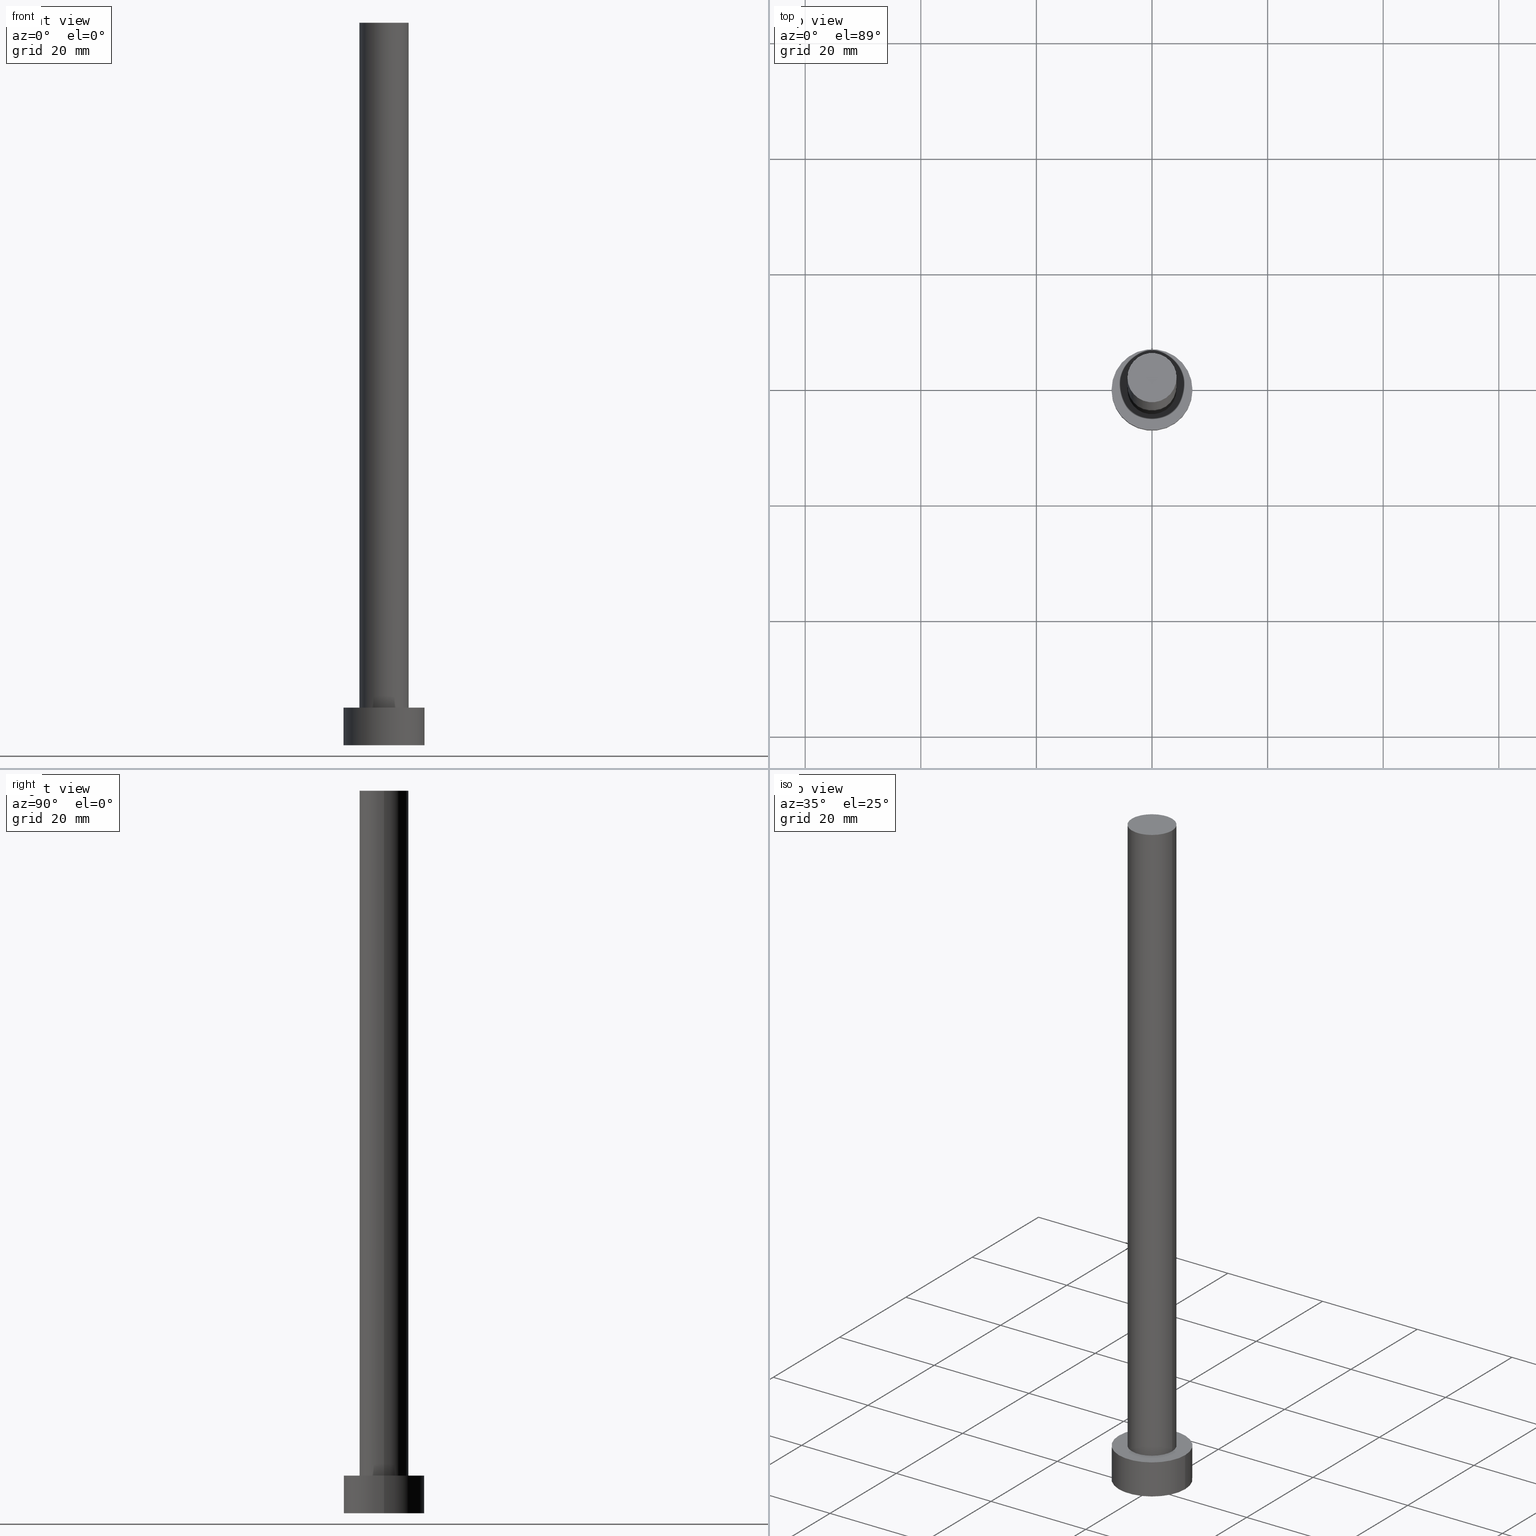
[diagram: canonical four-view strip — front | top / right | iso, engineering-drawing reading convention]
A machine part, canonical four-view strip (front | top / right | iso — engineering-drawing reading convention). The complete STEP part file that produces these views, byte-faithful:
ISO-10303-21;
HEADER;
FILE_DESCRIPTION (( 'STEP AP203' ),
    '1' );
FILE_NAME ('383f.STEP',
    '2023-02-13T13:48:49',
    ( '' ),
    ( '' ),
    'SwSTEP 2.0',
    'SolidWorks 2019',
    '' );
FILE_SCHEMA (( 'CONFIG_CONTROL_DESIGN' ));
ENDSEC;

DATA;
#1 = DATE_AND_TIME ( #179, #61 ) ;
#2 =( NAMED_UNIT ( * ) SI_UNIT ( $, .STERADIAN. ) SOLID_ANGLE_UNIT ( ) );
#3 = CIRCLE ( 'NONE', #147, 7.000000000000000000 ) ;
#4 = PRODUCT ( '383f', '383f', '', ( #25 ) ) ;
#5 = ADVANCED_FACE ( 'NONE', ( #161 ), #238, .T. ) ;
#6 = DIRECTION ( 'NONE',  ( -0.000000000000000000, -0.000000000000000000, -1.000000000000000000 ) ) ;
#7 = PERSON_AND_ORGANIZATION_ROLE ( 'creator' ) ;
#8 = AXIS2_PLACEMENT_3D ( 'NONE', #193, #16, #71 ) ;
#9 = PERSON_AND_ORGANIZATION_ROLE ( 'design_supplier' ) ;
#10 = DIRECTION ( 'NONE',  ( 0.000000000000000000, 0.000000000000000000, 1.000000000000000000 ) ) ;
#11 = PERSON_AND_ORGANIZATION ( #241, #66 ) ;
#12 = LOCAL_TIME ( 14, 48, 49.00000000000000000, #206 ) ;
#13 = CC_DESIGN_APPROVAL ( #190, ( #156 ) ) ;
#14 = DIRECTION ( 'NONE',  ( 0.000000000000000000, 0.000000000000000000, 1.000000000000000000 ) ) ;
#15 = APPROVAL ( #48, 'NEUR�EN�' ) ;
#16 = DIRECTION ( 'NONE',  ( -0.000000000000000000, -0.000000000000000000, -1.000000000000000000 ) ) ;
#17 = VERTEX_POINT ( 'NONE', #240 ) ;
#18 = DATE_AND_TIME ( #139, #114 ) ;
#19 = DIRECTION ( 'NONE',  ( 1.000000000000000000, 0.000000000000000000, -0.000000000000000000 ) ) ;
#20 = CYLINDRICAL_SURFACE ( 'NONE', #195, 4.250000000000000000 ) ;
#21 = ORIENTED_EDGE ( 'NONE', *, *, #168, .F. ) ;
#22 = LOCAL_TIME ( 14, 48, 49.00000000000000000, #142 ) ;
#23 = PRODUCT_RELATED_PRODUCT_CATEGORY ( 'detail', '', ( #4 ) ) ;
#24 = EDGE_LOOP ( 'NONE', ( #219, #39, #58, #126 ) ) ;
#25 = MECHANICAL_CONTEXT ( 'NONE', #50, 'mechanical' ) ;
#26 = PLANE ( 'NONE',  #45 ) ;
#27 = CC_DESIGN_PERSON_AND_ORGANIZATION_ASSIGNMENT ( #200, #129, ( #4 ) ) ;
#28 = DIRECTION ( 'NONE',  ( -0.000000000000000000, -0.000000000000000000, -1.000000000000000000 ) ) ;
#29 = CALENDAR_DATE ( 2023, 13, 2 ) ;
#30 = DIRECTION ( 'NONE',  ( 1.000000000000000000, 0.000000000000000000, -0.000000000000000000 ) ) ;
#31 = CIRCLE ( 'NONE', #207, 7.000000000000000000 ) ;
#32 = EDGE_CURVE ( 'NONE', #105, #217, #47, .T. ) ;
#33 = DIRECTION ( 'NONE',  ( 0.000000000000000000, 0.000000000000000000, 1.000000000000000000 ) ) ;
#34 = CLOSED_SHELL ( 'NONE', ( #53, #5, #137, #79, #74, #211, #162 ) ) ;
#35 = MANIFOLD_SOLID_BREP ( 'P�idat vysunut�m3', #34 ) ;
#36 = CARTESIAN_POINT ( 'NONE',  ( -4.250000000000000000, 0.000000000000000000, 125.0000000000000000 ) ) ;
#37 = DIRECTION ( 'NONE',  ( 1.000000000000000000, 0.000000000000000000, 0.000000000000000000 ) ) ;
#38 = UNCERTAINTY_MEASURE_WITH_UNIT (LENGTH_MEASURE( 1.000000000000000082E-05 ), #213, 'distance_accuracy_value', 'NONE');
#39 = ORIENTED_EDGE ( 'NONE', *, *, #106, .F. ) ;
#40 = LINE ( 'NONE', #196, #201 ) ;
#41 = CC_DESIGN_DATE_AND_TIME_ASSIGNMENT ( #1, #85, ( #93 ) ) ;
#42 = ORIENTED_EDGE ( 'NONE', *, *, #32, .T. ) ;
#43 = EDGE_CURVE ( 'NONE', #105, #128, #225, .T. ) ;
#44 = VERTEX_POINT ( 'NONE', #234 ) ;
#45 = AXIS2_PLACEMENT_3D ( 'NONE', #96, #246, #244 ) ;
#46 = ADVANCED_BREP_SHAPE_REPRESENTATION ( '383f', ( #35, #216 ), #248 ) ;
#47 = LINE ( 'NONE', #187, #250 ) ;
#48 = APPROVAL_STATUS ( 'not_yet_approved' ) ;
#49 = CC_DESIGN_SECURITY_CLASSIFICATION ( #157, ( #156 ) ) ;
#50 = APPLICATION_CONTEXT ( 'configuration controlled 3d designs of mechanical parts and assemblies' ) ;
#51 = APPROVAL_DATE_TIME ( #223, #190 ) ;
#52 = CARTESIAN_POINT ( 'NONE',  ( -4.250000000000000000, 0.000000000000000000, 125.0000000000000000 ) ) ;
#53 = ADVANCED_FACE ( 'NONE', ( #199 ), #20, .T. ) ;
#54 = COORDINATED_UNIVERSAL_TIME_OFFSET ( 1, 0, .AHEAD. ) ;
#55 = CARTESIAN_POINT ( 'NONE',  ( -7.000000000000000000, 0.000000000000000000, 6.500000000000000000 ) ) ;
#56 = AXIS2_PLACEMENT_3D ( 'NONE', #251, #80, #59 ) ;
#57 = DIRECTION ( 'NONE',  ( -1.000000000000000000, 0.000000000000000000, 0.000000000000000000 ) ) ;
#58 = ORIENTED_EDGE ( 'NONE', *, *, #99, .T. ) ;
#59 = DIRECTION ( 'NONE',  ( 1.000000000000000000, 0.000000000000000000, 0.000000000000000000 ) ) ;
#60 = EDGE_CURVE ( 'NONE', #128, #81, #141, .T. ) ;
#61 = LOCAL_TIME ( 14, 48, 49.00000000000000000, #103 ) ;
#62 = VECTOR ( 'NONE', #28, 1000.000000000000000 ) ;
#63 = ORIENTED_EDGE ( 'NONE', *, *, #245, .F. ) ;
#64 = APPROVAL ( #159, 'NEUR�EN�' ) ;
#65 = CARTESIAN_POINT ( 'NONE',  ( 0.000000000000000000, 0.000000000000000000, 125.0000000000000000 ) ) ;
#66 = ORGANIZATION ( 'NEUR�EN�', 'NEUR�EN�', '' ) ;
#67 = APPROVAL_STATUS ( 'not_yet_approved' ) ;
#68 = CARTESIAN_POINT ( 'NONE',  ( 0.000000000000000000, 0.000000000000000000, 0.000000000000000000 ) ) ;
#69 = APPLICATION_CONTEXT ( 'configuration controlled 3d designs of mechanical parts and assemblies' ) ;
#70 = CIRCLE ( 'NONE', #197, 4.250000000000000000 ) ;
#71 = DIRECTION ( 'NONE',  ( -1.000000000000000000, 0.000000000000000000, 0.000000000000000000 ) ) ;
#72 = FACE_BOUND ( 'NONE', #122, .T. ) ;
#73 = PERSON_AND_ORGANIZATION_ROLE ( 'classification_officer' ) ;
#74 = ADVANCED_FACE ( 'NONE', ( #112 ), #26, .F. ) ;
#75 = CARTESIAN_POINT ( 'NONE',  ( -7.000000000000000000, 0.000000000000000000, 0.000000000000000000 ) ) ;
#76 = CYLINDRICAL_SURFACE ( 'NONE', #100, 4.250000000000000000 ) ;
#77 = EDGE_LOOP ( 'NONE', ( #111, #42, #253, #146 ) ) ;
#78 = COORDINATED_UNIVERSAL_TIME_OFFSET ( 1, 0, .AHEAD. ) ;
#79 = ADVANCED_FACE ( 'NONE', ( #72, #150 ), #131, .T. ) ;
#80 = DIRECTION ( 'NONE',  ( 0.000000000000000000, 0.000000000000000000, 1.000000000000000000 ) ) ;
#81 = VERTEX_POINT ( 'NONE', #94 ) ;
#82 = CARTESIAN_POINT ( 'NONE',  ( 7.000000000000000000, 8.572527594031471218E-16, 6.500000000000000000 ) ) ;
#83 = EDGE_LOOP ( 'NONE', ( #84, #101, #138, #214 ) ) ;
#84 = ORIENTED_EDGE ( 'NONE', *, *, #32, .F. ) ;
#85 = DATE_TIME_ROLE ( 'creation_date' ) ;
#86 = ORIENTED_EDGE ( 'NONE', *, *, #43, .T. ) ;
#87 = VERTEX_POINT ( 'NONE', #75 ) ;
#88 =( NAMED_UNIT ( * ) PLANE_ANGLE_UNIT ( ) SI_UNIT ( $, .RADIAN. ) );
#89 = APPROVAL_PERSON_ORGANIZATION ( #242, #15, #183 ) ;
#90 = AXIS2_PLACEMENT_3D ( 'NONE', #192, #14, #209 ) ;
#91 = DIRECTION ( 'NONE',  ( 1.000000000000000000, 0.000000000000000000, 0.000000000000000000 ) ) ;
#92 = SECURITY_CLASSIFICATION_LEVEL ( 'unclassified' ) ;
#93 = PRODUCT_DEFINITION ( 'NEZN�M�', '', #156, #98 ) ;
#94 = CARTESIAN_POINT ( 'NONE',  ( -4.250000000000000000, 0.000000000000000000, 6.500000000000000000 ) ) ;
#95 = DIRECTION ( 'NONE',  ( 0.000000000000000000, 0.000000000000000000, 1.000000000000000000 ) ) ;
#96 = CARTESIAN_POINT ( 'NONE',  ( 0.000000000000000000, 0.000000000000000000, 0.000000000000000000 ) ) ;
#97 = EDGE_LOOP ( 'NONE', ( #166, #221 ) ) ;
#98 = DESIGN_CONTEXT ( 'detailed design', #69, 'design' ) ;
#99 = EDGE_CURVE ( 'NONE', #17, #87, #171, .T. ) ;
#100 = AXIS2_PLACEMENT_3D ( 'NONE', #154, #228, #57 ) ;
#101 = ORIENTED_EDGE ( 'NONE', *, *, #118, .F. ) ;
#102 = VECTOR ( 'NONE', #247, 1000.000000000000000 ) ;
#103 = COORDINATED_UNIVERSAL_TIME_OFFSET ( 1, 0, .AHEAD. ) ;
#104 = DIRECTION ( 'NONE',  ( -0.000000000000000000, -0.000000000000000000, -1.000000000000000000 ) ) ;
#105 = VERTEX_POINT ( 'NONE', #148 ) ;
#106 = EDGE_CURVE ( 'NONE', #17, #182, #191, .T. ) ;
#107 = ORIENTED_EDGE ( 'NONE', *, *, #99, .F. ) ;
#108 = ORIENTED_EDGE ( 'NONE', *, *, #118, .T. ) ;
#109 = DATE_AND_TIME ( #218, #22 ) ;
#110 = EDGE_CURVE ( 'NONE', #81, #217, #70, .T. ) ;
#111 = ORIENTED_EDGE ( 'NONE', *, *, #43, .F. ) ;
#112 = FACE_OUTER_BOUND ( 'NONE', #97, .T. ) ;
#113 = CALENDAR_DATE ( 2023, 13, 2 ) ;
#114 = LOCAL_TIME ( 14, 48, 49.00000000000000000, #78 ) ;
#115 = CIRCLE ( 'NONE', #152, 7.000000000000000000 ) ;
#116 = DIRECTION ( 'NONE',  ( 1.000000000000000000, 0.000000000000000000, 0.000000000000000000 ) ) ;
#117 = CYLINDRICAL_SURFACE ( 'NONE', #8, 7.000000000000000000 ) ;
#118 = EDGE_CURVE ( 'NONE', #128, #105, #243, .T. ) ;
#119 = DIRECTION ( 'NONE',  ( 1.000000000000000000, 0.000000000000000000, 0.000000000000000000 ) ) ;
#120 = DATE_TIME_ROLE ( 'classification_date' ) ;
#121 = SHAPE_DEFINITION_REPRESENTATION ( #184, #46 ) ;
#122 = EDGE_LOOP ( 'NONE', ( #155, #63 ) ) ;
#123 = DIRECTION ( 'NONE',  ( -1.000000000000000000, 0.000000000000000000, 0.000000000000000000 ) ) ;
#124 = APPROVAL_ROLE ( '' ) ;
#125 = CC_DESIGN_PERSON_AND_ORGANIZATION_ASSIGNMENT ( #186, #7, ( #93 ) ) ;
#126 = ORIENTED_EDGE ( 'NONE', *, *, #215, .T. ) ;
#127 = LOCAL_TIME ( 14, 48, 49.00000000000000000, #54 ) ;
#128 = VERTEX_POINT ( 'NONE', #36 ) ;
#129 = PERSON_AND_ORGANIZATION_ROLE ( 'design_owner' ) ;
#130 = DIRECTION ( 'NONE',  ( -0.000000000000000000, -0.000000000000000000, -1.000000000000000000 ) ) ;
#131 = PLANE ( 'NONE',  #149 ) ;
#132 = PLANE ( 'NONE',  #239 ) ;
#133 = DIRECTION ( 'NONE',  ( 0.000000000000000000, 0.000000000000000000, 1.000000000000000000 ) ) ;
#134 = DIRECTION ( 'NONE',  ( 1.000000000000000000, 0.000000000000000000, 0.000000000000000000 ) ) ;
#135 = CARTESIAN_POINT ( 'NONE',  ( 0.000000000000000000, 0.000000000000000000, 6.500000000000000000 ) ) ;
#136 = CARTESIAN_POINT ( 'NONE',  ( 0.000000000000000000, 0.000000000000000000, 0.000000000000000000 ) ) ;
#137 = ADVANCED_FACE ( 'NONE', ( #173 ), #117, .T. ) ;
#138 = ORIENTED_EDGE ( 'NONE', *, *, #60, .T. ) ;
#139 = CALENDAR_DATE ( 2023, 13, 2 ) ;
#140 = DIRECTION ( 'NONE',  ( 0.000000000000000000, 0.000000000000000000, 1.000000000000000000 ) ) ;
#141 = LINE ( 'NONE', #52, #62 ) ;
#142 = COORDINATED_UNIVERSAL_TIME_OFFSET ( 1, 0, .AHEAD. ) ;
#143 = ORIENTED_EDGE ( 'NONE', *, *, #204, .T. ) ;
#144 = DIRECTION ( 'NONE',  ( 0.000000000000000000, 0.000000000000000000, 1.000000000000000000 ) ) ;
#145 = APPLICATION_PROTOCOL_DEFINITION ( 'international standard', 'config_control_design', 1994, #50 ) ;
#146 = ORIENTED_EDGE ( 'NONE', *, *, #60, .F. ) ;
#147 = AXIS2_PLACEMENT_3D ( 'NONE', #136, #210, #37 ) ;
#148 = CARTESIAN_POINT ( 'NONE',  ( 4.250000000000000000, 5.204748896376250699E-16, 125.0000000000000000 ) ) ;
#149 = AXIS2_PLACEMENT_3D ( 'NONE', #135, #133, #30 ) ;
#150 = FACE_OUTER_BOUND ( 'NONE', #158, .T. ) ;
#151 = EDGE_CURVE ( 'NONE', #44, #87, #115, .T. ) ;
#152 = AXIS2_PLACEMENT_3D ( 'NONE', #189, #10, #91 ) ;
#153 = CARTESIAN_POINT ( 'NONE',  ( 0.000000000000000000, 0.000000000000000000, 6.500000000000000000 ) ) ;
#154 = CARTESIAN_POINT ( 'NONE',  ( 0.000000000000000000, 0.000000000000000000, 125.0000000000000000 ) ) ;
#155 = ORIENTED_EDGE ( 'NONE', *, *, #110, .F. ) ;
#156 = PRODUCT_DEFINITION_FORMATION_WITH_SPECIFIED_SOURCE ( 'LIBOVOLN�', '', #4, .NOT_KNOWN. ) ;
#157 = SECURITY_CLASSIFICATION ( '', '', #92 ) ;
#158 = EDGE_LOOP ( 'NONE', ( #226, #178 ) ) ;
#159 = APPROVAL_STATUS ( 'not_yet_approved' ) ;
#160 = CARTESIAN_POINT ( 'NONE',  ( 0.000000000000000000, 0.000000000000000000, 125.0000000000000000 ) ) ;
#161 = FACE_OUTER_BOUND ( 'NONE', #180, .T. ) ;
#162 = ADVANCED_FACE ( 'NONE', ( #224 ), #132, .T. ) ;
#163 = APPLICATION_PROTOCOL_DEFINITION ( 'international standard', 'config_control_design', 1994, #69 ) ;
#164 = DIRECTION ( 'NONE',  ( -1.000000000000000000, 0.000000000000000000, 0.000000000000000000 ) ) ;
#165 = EDGE_LOOP ( 'NONE', ( #108, #86 ) ) ;
#166 = ORIENTED_EDGE ( 'NONE', *, *, #215, .F. ) ;
#167 = AXIS2_PLACEMENT_3D ( 'NONE', #65, #140, #198 ) ;
#168 = EDGE_CURVE ( 'NONE', #182, #17, #31, .T. ) ;
#169 = CC_DESIGN_APPROVAL ( #15, ( #93 ) ) ;
#170 = PERSON_AND_ORGANIZATION ( #241, #66 ) ;
#171 = LINE ( 'NONE', #55, #102 ) ;
#172 = CC_DESIGN_PERSON_AND_ORGANIZATION_ASSIGNMENT ( #188, #9, ( #156 ) ) ;
#173 = FACE_OUTER_BOUND ( 'NONE', #24, .T. ) ;
#174 = CARTESIAN_POINT ( 'NONE',  ( 0.000000000000000000, 0.000000000000000000, 6.500000000000000000 ) ) ;
#175 = APPROVAL_DATE_TIME ( #18, #64 ) ;
#176 = CARTESIAN_POINT ( 'NONE',  ( 4.250000000000000000, 5.204748896376250699E-16, 6.500000000000000000 ) ) ;
#177 = FACE_OUTER_BOUND ( 'NONE', #83, .T. ) ;
#178 = ORIENTED_EDGE ( 'NONE', *, *, #168, .T. ) ;
#179 = CALENDAR_DATE ( 2023, 13, 2 ) ;
#180 = EDGE_LOOP ( 'NONE', ( #21, #143, #237, #107 ) ) ;
#181 = CIRCLE ( 'NONE', #56, 4.250000000000000000 ) ;
#182 = VERTEX_POINT ( 'NONE', #82 ) ;
#183 = APPROVAL_ROLE ( '' ) ;
#184 = PRODUCT_DEFINITION_SHAPE ( 'NONE', 'NONE',  #93 ) ;
#185 = CARTESIAN_POINT ( 'NONE',  ( 0.000000000000000000, 0.000000000000000000, 6.500000000000000000 ) ) ;
#186 = PERSON_AND_ORGANIZATION ( #241, #66 ) ;
#187 = CARTESIAN_POINT ( 'NONE',  ( 4.250000000000000000, 5.204748896376250699E-16, 125.0000000000000000 ) ) ;
#188 = PERSON_AND_ORGANIZATION ( #241, #66 ) ;
#189 = CARTESIAN_POINT ( 'NONE',  ( 0.000000000000000000, 0.000000000000000000, 0.000000000000000000 ) ) ;
#190 = APPROVAL ( #67, 'NEUR�EN�' ) ;
#191 = CIRCLE ( 'NONE', #202, 7.000000000000000000 ) ;
#192 = CARTESIAN_POINT ( 'NONE',  ( 0.000000000000000000, 0.000000000000000000, 125.0000000000000000 ) ) ;
#193 = CARTESIAN_POINT ( 'NONE',  ( 0.000000000000000000, 0.000000000000000000, 6.500000000000000000 ) ) ;
#194 = APPROVAL_ROLE ( '' ) ;
#195 = AXIS2_PLACEMENT_3D ( 'NONE', #232, #104, #123 ) ;
#196 = CARTESIAN_POINT ( 'NONE',  ( 7.000000000000000000, 8.572527594031471218E-16, 6.500000000000000000 ) ) ;
#197 = AXIS2_PLACEMENT_3D ( 'NONE', #153, #33, #116 ) ;
#198 = DIRECTION ( 'NONE',  ( 1.000000000000000000, 0.000000000000000000, 0.000000000000000000 ) ) ;
#199 = FACE_OUTER_BOUND ( 'NONE', #77, .T. ) ;
#200 = PERSON_AND_ORGANIZATION ( #241, #66 ) ;
#201 = VECTOR ( 'NONE', #255, 1000.000000000000000 ) ;
#202 = AXIS2_PLACEMENT_3D ( 'NONE', #205, #95, #134 ) ;
#203 = DIRECTION ( 'NONE',  ( 1.000000000000000000, 0.000000000000000000, 0.000000000000000000 ) ) ;
#204 = EDGE_CURVE ( 'NONE', #182, #44, #40, .T. ) ;
#205 = CARTESIAN_POINT ( 'NONE',  ( 0.000000000000000000, 0.000000000000000000, 6.500000000000000000 ) ) ;
#206 = COORDINATED_UNIVERSAL_TIME_OFFSET ( 1, 0, .AHEAD. ) ;
#207 = AXIS2_PLACEMENT_3D ( 'NONE', #174, #249, #119 ) ;
#208 = PERSON_AND_ORGANIZATION_ROLE ( 'creator' ) ;
#209 = DIRECTION ( 'NONE',  ( 1.000000000000000000, 0.000000000000000000, 0.000000000000000000 ) ) ;
#210 = DIRECTION ( 'NONE',  ( 0.000000000000000000, 0.000000000000000000, 1.000000000000000000 ) ) ;
#211 = ADVANCED_FACE ( 'NONE', ( #177 ), #76, .T. ) ;
#212 = DATE_AND_TIME ( #29, #12 ) ;
#213 =( LENGTH_UNIT ( ) NAMED_UNIT ( * ) SI_UNIT ( .MILLI., .METRE. ) );
#214 = ORIENTED_EDGE ( 'NONE', *, *, #110, .T. ) ;
#215 = EDGE_CURVE ( 'NONE', #87, #44, #3, .T. ) ;
#216 = AXIS2_PLACEMENT_3D ( 'NONE', #68, #144, #203 ) ;
#217 = VERTEX_POINT ( 'NONE', #176 ) ;
#218 = CALENDAR_DATE ( 2023, 13, 2 ) ;
#219 = ORIENTED_EDGE ( 'NONE', *, *, #204, .F. ) ;
#220 = APPROVAL_PERSON_ORGANIZATION ( #230, #64, #194 ) ;
#221 = ORIENTED_EDGE ( 'NONE', *, *, #151, .F. ) ;
#222 = CC_DESIGN_DATE_AND_TIME_ASSIGNMENT ( #212, #120, ( #157 ) ) ;
#223 = DATE_AND_TIME ( #113, #127 ) ;
#224 = FACE_OUTER_BOUND ( 'NONE', #165, .T. ) ;
#225 = CIRCLE ( 'NONE', #167, 4.250000000000000000 ) ;
#226 = ORIENTED_EDGE ( 'NONE', *, *, #106, .T. ) ;
#227 = APPROVAL_PERSON_ORGANIZATION ( #233, #190, #124 ) ;
#228 = DIRECTION ( 'NONE',  ( -0.000000000000000000, -0.000000000000000000, -1.000000000000000000 ) ) ;
#229 = AXIS2_PLACEMENT_3D ( 'NONE', #185, #6, #164 ) ;
#230 = PERSON_AND_ORGANIZATION ( #241, #66 ) ;
#231 = DIRECTION ( 'NONE',  ( 0.000000000000000000, 0.000000000000000000, 1.000000000000000000 ) ) ;
#232 = CARTESIAN_POINT ( 'NONE',  ( 0.000000000000000000, 0.000000000000000000, 125.0000000000000000 ) ) ;
#233 = PERSON_AND_ORGANIZATION ( #241, #66 ) ;
#234 = CARTESIAN_POINT ( 'NONE',  ( 7.000000000000000000, 8.572527594031471218E-16, 0.000000000000000000 ) ) ;
#235 = APPROVAL_DATE_TIME ( #109, #15 ) ;
#236 = CC_DESIGN_PERSON_AND_ORGANIZATION_ASSIGNMENT ( #170, #73, ( #157 ) ) ;
#237 = ORIENTED_EDGE ( 'NONE', *, *, #151, .T. ) ;
#238 = CYLINDRICAL_SURFACE ( 'NONE', #229, 7.000000000000000000 ) ;
#239 = AXIS2_PLACEMENT_3D ( 'NONE', #160, #231, #19 ) ;
#240 = CARTESIAN_POINT ( 'NONE',  ( -7.000000000000000000, 0.000000000000000000, 6.500000000000000000 ) ) ;
#241 = PERSON ( 'NEUR�EN�', 'NEUR�EN�', 'NEUR�EN�', ('NEUR�EN�'), ('NEUR�EN�'), ('NEUR�EN�') ) ;
#242 = PERSON_AND_ORGANIZATION ( #241, #66 ) ;
#243 = CIRCLE ( 'NONE', #90, 4.250000000000000000 ) ;
#244 = DIRECTION ( 'NONE',  ( 1.000000000000000000, 0.000000000000000000, -0.000000000000000000 ) ) ;
#245 = EDGE_CURVE ( 'NONE', #217, #81, #181, .T. ) ;
#246 = DIRECTION ( 'NONE',  ( 0.000000000000000000, 0.000000000000000000, 1.000000000000000000 ) ) ;
#247 = DIRECTION ( 'NONE',  ( -0.000000000000000000, -0.000000000000000000, -1.000000000000000000 ) ) ;
#248 =( GEOMETRIC_REPRESENTATION_CONTEXT ( 3 ) GLOBAL_UNCERTAINTY_ASSIGNED_CONTEXT ( ( #38 ) ) GLOBAL_UNIT_ASSIGNED_CONTEXT ( ( #213, #88, #2 ) ) REPRESENTATION_CONTEXT ( 'NONE', 'WORKASPACE' ) );
#249 = DIRECTION ( 'NONE',  ( 0.000000000000000000, 0.000000000000000000, 1.000000000000000000 ) ) ;
#250 = VECTOR ( 'NONE', #130, 1000.000000000000000 ) ;
#251 = CARTESIAN_POINT ( 'NONE',  ( 0.000000000000000000, 0.000000000000000000, 6.500000000000000000 ) ) ;
#252 = CC_DESIGN_PERSON_AND_ORGANIZATION_ASSIGNMENT ( #11, #208, ( #156 ) ) ;
#253 = ORIENTED_EDGE ( 'NONE', *, *, #245, .T. ) ;
#254 = CC_DESIGN_APPROVAL ( #64, ( #157 ) ) ;
#255 = DIRECTION ( 'NONE',  ( -0.000000000000000000, -0.000000000000000000, -1.000000000000000000 ) ) ;
ENDSEC;
END-ISO-10303-21;
